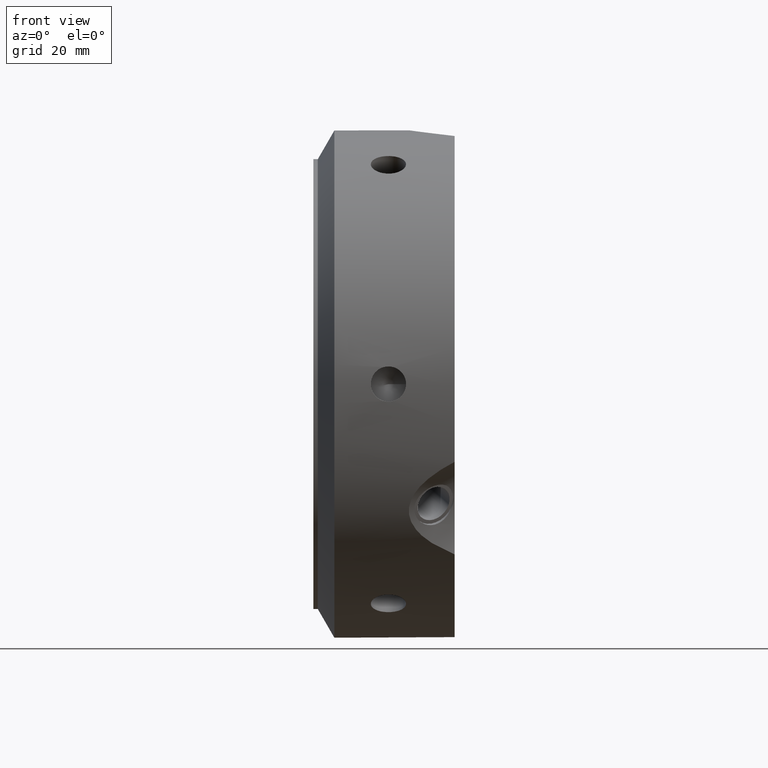
[diagram: clean part render]
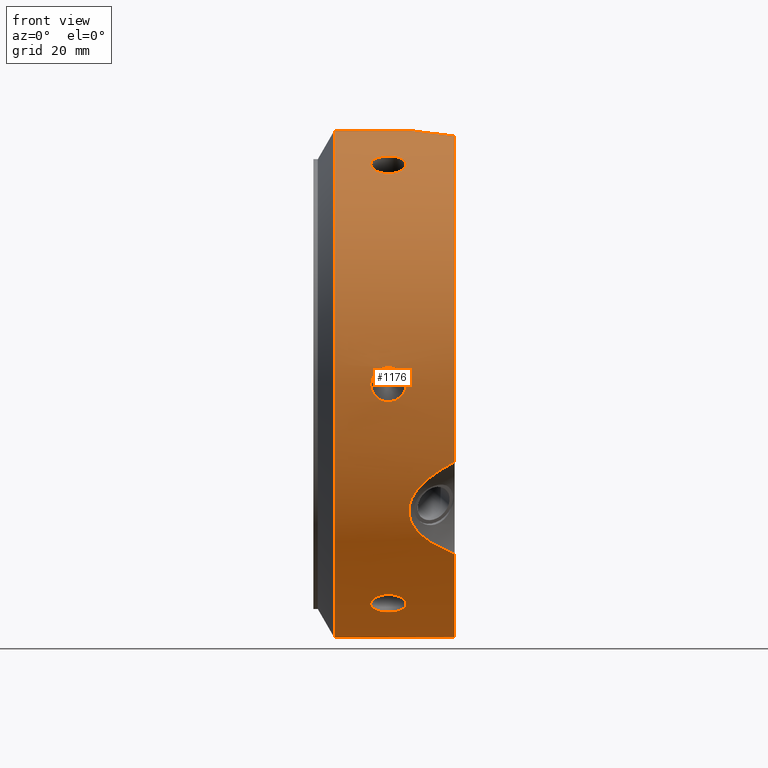
[diagram: same view with one face highlighted and labeled with its STEP entity id]
A machine part, front view. The second image highlights one B-rep face of the part: STEP entity #1176.
In plain terms, the highlighted cylindrical surface (bore or boss wall) has radius 57.5 mm, axis along (1, 0, 0).
Its self-contained STEP definition (entity closure, byte-faithful):
#90=CARTESIAN_POINT('',(12.999999999999975,28.75000000000005,49.7964607176052));
#91=VERTEX_POINT('',#90);
#92=CARTESIAN_POINT('',(20.999999999999979,28.750000000000053,49.7964607176052));
#93=VERTEX_POINT('',#92);
#94=CARTESIAN_POINT('',(12.999999999999975,28.75000000000005,49.796460717605193));
#95=CARTESIAN_POINT('',(12.999999999999975,29.185110928411781,49.545249305959331));
#96=CARTESIAN_POINT('',(13.100442524929877,29.645497984620533,49.271060563840649));
#97=CARTESIAN_POINT('',(13.508707771801728,30.48581583276988,48.755594477502655));
#98=CARTESIAN_POINT('',(13.816521521456016,30.86594565468782,48.514634555682164));
#99=CARTESIAN_POINT('',(14.526624510705979,31.46342671844463,48.129296136169337));
#100=CARTESIAN_POINT('',(14.976306428602872,31.720684961850907,47.959253418174043));
#101=CARTESIAN_POINT('',(15.961775664876292,32.061106468668989,47.732350612240538));
#102=CARTESIAN_POINT('',(16.497576778147295,32.144452031407127,47.675824099857635));
#103=CARTESIAN_POINT('',(17.502423221852659,32.144452031407127,47.675824099857635));
#104=CARTESIAN_POINT('',(18.038224335123672,32.061106468668989,47.732350612240552));
#105=CARTESIAN_POINT('',(19.023693571397089,31.720684961850903,47.95925341817405));
#106=CARTESIAN_POINT('',(19.473375489293975,31.463426718444623,48.129296136169337));
#107=CARTESIAN_POINT('',(20.183478478543936,30.865945654687813,48.514634555682164));
#108=CARTESIAN_POINT('',(20.491292228198233,30.485815832769877,48.755594477502655));
#109=CARTESIAN_POINT('',(20.899557475070083,29.645497984620526,49.271060563840649));
#110=CARTESIAN_POINT('',(20.999999999999975,29.185110928411781,49.545249305959331));
#111=CARTESIAN_POINT('',(20.999999999999975,28.75000000000005,49.796460717605193));
#112=B_SPLINE_CURVE_WITH_KNOTS('',3,(#94,#95,#96,#97,#98,#99,#100,#101,#102,#103,#104,#105,#106,#107,#108,#109,#110,#111),.UNSPECIFIED.,.F.,.U.,(4,2,2,2,2,2,2,2,4),(0.602907627086641,0.753634474074158,0.904361321061674,1.055088287617478,1.205815254173283,1.356542220729087,1.507269187284891,1.657996034272408,1.808722881259924),.UNSPECIFIED.);
#113=EDGE_CURVE('',#91,#93,#112,.T.);
#115=CARTESIAN_POINT('',(20.999999999999979,28.750000000000043,49.796460717605193));
#116=CARTESIAN_POINT('',(20.999999999999979,28.314889071588315,50.047672129251055));
#117=CARTESIAN_POINT('',(20.899557475070086,27.847241127377465,50.309284644442016));
#118=CARTESIAN_POINT('',(20.491292228198233,26.98067547774474,50.779288205023832));
#119=CARTESIAN_POINT('',(20.18347847854394,26.581933153195315,50.98801032663058));
#120=CARTESIAN_POINT('',(19.473375489293979,25.949479760964664,51.312774896367713));
#121=CARTESIAN_POINT('',(19.023693571397089,25.673589325749045,51.450545711492865));
#122=CARTESIAN_POINT('',(18.038224335123669,25.306874978211621,51.631907981425158));
#123=CARTESIAN_POINT('',(17.502423221852659,25.21624880113162,51.675824099857635));
#124=CARTESIAN_POINT('',(16.999999999999979,25.21624880113162,51.675824099857635));
#125=CARTESIAN_POINT('',(16.497576778147295,25.21624880113162,51.675824099857635));
#126=CARTESIAN_POINT('',(15.961775664876285,25.306874978211621,51.631907981425158));
#127=CARTESIAN_POINT('',(14.976306428602866,25.673589325749045,51.450545711492865));
#128=CARTESIAN_POINT('',(14.526624510705977,25.949479760964664,51.312774896367713));
#129=CARTESIAN_POINT('',(13.816521521456016,26.581933153195315,50.98801032663058));
#130=CARTESIAN_POINT('',(13.508707771801722,26.98067547774474,50.779288205023825));
#131=CARTESIAN_POINT('',(13.100442524929871,27.847241127377465,50.309284644442009));
#132=CARTESIAN_POINT('',(12.999999999999975,28.314889071588318,50.047672129251055));
#133=CARTESIAN_POINT('',(12.999999999999975,28.75000000000005,49.796460717605193));
#134=B_SPLINE_CURVE_WITH_KNOTS('',3,(#115,#116,#117,#118,#119,#120,#121,#122,#123,#124,#125,#126,#127,#128,#129,#130,#131,#132,#133),.UNSPECIFIED.,.F.,.U.,(4,2,2,2,3,2,2,2,4),(1.808722881259924,1.95944972824744,2.110176575234957,2.260903541790761,2.411630508346565,2.56235747490237,2.713084441458174,2.863811288445691,3.014538135433207),.UNSPECIFIED.);
#135=EDGE_CURVE('',#93,#91,#134,.T.);
#202=CARTESIAN_POINT('',(12.999999999999975,57.5,-3.830269E-014));
#203=VERTEX_POINT('',#202);
#204=CARTESIAN_POINT('',(20.999999999999979,57.5,-3.552714E-014));
#205=VERTEX_POINT('',#204);
#206=CARTESIAN_POINT('',(12.999999999999975,57.5,-3.233525E-014));
#207=CARTESIAN_POINT('',(12.999999999999975,57.5,-0.502422823291754));
#208=CARTESIAN_POINT('',(13.100442524929877,57.492739111997899,-1.038224080601411));
#209=CARTESIAN_POINT('',(13.508707771801724,57.46649131051452,-2.023693727521222));
#210=CARTESIAN_POINT('',(13.816521521456014,57.447878807883029,-2.473375770948451));
#211=CARTESIAN_POINT('',(14.526624510705977,57.412906479409187,-3.183478760198414));
#212=CARTESIAN_POINT('',(14.976306428602868,57.394274287599849,-3.491292293318862));
#213=CARTESIAN_POINT('',(15.96177566487629,57.367981446880506,-3.89955736918465));
#214=CARTESIAN_POINT('',(16.497576778147298,57.36070083253864,-4.000000000000034));
#215=CARTESIAN_POINT('',(17.502423221852656,57.36070083253864,-4.000000000000034));
#216=CARTESIAN_POINT('',(18.038224335123665,57.367981446880513,-3.89955736918465));
#217=CARTESIAN_POINT('',(19.023693571397086,57.394274287599856,-3.491292293318864));
#218=CARTESIAN_POINT('',(19.473375489293975,57.412906479409187,-3.183478760198414));
#219=CARTESIAN_POINT('',(20.183478478543936,57.447878807883029,-2.473375770948452));
#220=CARTESIAN_POINT('',(20.491292228198226,57.46649131051452,-2.023693727521224));
#221=CARTESIAN_POINT('',(20.899557475070083,57.492739111997899,-1.038224080601413));
#222=CARTESIAN_POINT('',(20.999999999999975,57.5,-0.502422823291757));
#223=CARTESIAN_POINT('',(20.999999999999975,57.5,-3.413936E-014));
#224=B_SPLINE_CURVE_WITH_KNOTS('',3,(#206,#207,#208,#209,#210,#211,#212,#213,#214,#215,#216,#217,#218,#219,#220,#221,#222,#223),.UNSPECIFIED.,.F.,.U.,(4,2,2,2,2,2,2,2,4),(0.602907627086641,0.753634474074158,0.904361321061674,1.055088287617479,1.205815254173283,1.356542220729087,1.507269187284891,1.657996034272408,1.808722881259925),.UNSPECIFIED.);
#225=EDGE_CURVE('',#203,#205,#224,.T.);
#227=CARTESIAN_POINT('',(20.999999999999975,57.5,-3.358425E-014));
#228=CARTESIAN_POINT('',(20.999999999999975,57.5,0.502422823291688));
#229=CARTESIAN_POINT('',(20.899557475070083,57.492739111997899,1.038224080601345));
#230=CARTESIAN_POINT('',(20.491292228198226,57.46649131051452,2.023693727521157));
#231=CARTESIAN_POINT('',(20.18347847854394,57.447878807883029,2.473375770948385));
#232=CARTESIAN_POINT('',(19.473375489293979,57.412906479409187,3.183478760198347));
#233=CARTESIAN_POINT('',(19.023693571397086,57.394274287599849,3.491292293318798));
#234=CARTESIAN_POINT('',(18.038224335123665,57.36798144688052,3.899557369184585));
#235=CARTESIAN_POINT('',(17.502423221852656,57.360700832538654,3.999999999999967));
#236=CARTESIAN_POINT('',(16.999999999999979,57.360700832538654,3.999999999999967));
#237=CARTESIAN_POINT('',(16.497576778147298,57.360700832538654,3.999999999999967));
#238=CARTESIAN_POINT('',(15.96177566487629,57.36798144688052,3.899557369184585));
#239=CARTESIAN_POINT('',(14.976306428602868,57.394274287599849,3.491292293318797));
#240=CARTESIAN_POINT('',(14.526624510705977,57.412906479409187,3.183478760198348));
#241=CARTESIAN_POINT('',(13.816521521456014,57.447878807883029,2.473375770948386));
#242=CARTESIAN_POINT('',(13.508707771801724,57.46649131051452,2.023693727521157));
#243=CARTESIAN_POINT('',(13.100442524929877,57.492739111997899,1.038224080601346));
#244=CARTESIAN_POINT('',(12.999999999999975,57.5,0.502422823291689));
#245=CARTESIAN_POINT('',(12.999999999999975,57.5,-3.247402E-014));
#246=B_SPLINE_CURVE_WITH_KNOTS('',3,(#227,#228,#229,#230,#231,#232,#233,#234,#235,#236,#237,#238,#239,#240,#241,#242,#243,#244,#245),.UNSPECIFIED.,.F.,.U.,(4,2,2,2,3,2,2,2,4),(1.808722881259925,1.959449728247441,2.110176575234958,2.260903541790762,2.411630508346566,2.56235747490237,2.713084441458174,2.863811288445691,3.014538135433207),.UNSPECIFIED.);
#247=EDGE_CURVE('',#205,#203,#246,.T.);
#314=CARTESIAN_POINT('',(12.999999999999975,28.749999999999986,-49.796460717605235));
#315=VERTEX_POINT('',#314);
#316=CARTESIAN_POINT('',(20.999999999999979,28.749999999999982,-49.796460717605235));
#317=VERTEX_POINT('',#316);
#318=CARTESIAN_POINT('',(12.999999999999975,28.749999999999993,-49.796460717605214));
#319=CARTESIAN_POINT('',(12.999999999999975,28.314889071588254,-50.047672129251083));
#320=CARTESIAN_POINT('',(13.100442524929871,27.847241127377401,-50.309284644442045));
#321=CARTESIAN_POINT('',(13.508707771801722,26.980675477744676,-50.77928820502386));
#322=CARTESIAN_POINT('',(13.816521521456014,26.581933153195251,-50.988010326630615));
#323=CARTESIAN_POINT('',(14.526624510705977,25.949479760964593,-51.312774896367742));
#324=CARTESIAN_POINT('',(14.976306428602868,25.673589325748974,-51.450545711492907));
#325=CARTESIAN_POINT('',(15.96177566487629,25.30687497821155,-51.631907981425201));
#326=CARTESIAN_POINT('',(16.497576778147298,25.216248801131556,-51.675824099857678));
#327=CARTESIAN_POINT('',(17.502423221852659,25.216248801131556,-51.675824099857678));
#328=CARTESIAN_POINT('',(18.03822433512368,25.306874978211553,-51.631907981425194));
#329=CARTESIAN_POINT('',(19.023693571397096,25.673589325748978,-51.450545711492893));
#330=CARTESIAN_POINT('',(19.473375489293979,25.9494797609646,-51.312774896367742));
#331=CARTESIAN_POINT('',(20.18347847854394,26.581933153195255,-50.988010326630615));
#332=CARTESIAN_POINT('',(20.491292228198226,26.980675477744672,-50.77928820502386));
#333=CARTESIAN_POINT('',(20.899557475070083,27.847241127377398,-50.309284644442045));
#334=CARTESIAN_POINT('',(20.999999999999979,28.314889071588262,-50.04767212925109));
#335=CARTESIAN_POINT('',(20.999999999999979,28.749999999999993,-49.796460717605228));
#336=B_SPLINE_CURVE_WITH_KNOTS('',3,(#318,#319,#320,#321,#322,#323,#324,#325,#326,#327,#328,#329,#330,#331,#332,#333,#334,#335),.UNSPECIFIED.,.F.,.U.,(4,2,2,2,2,2,2,2,4),(0.602907627086641,0.753634474074158,0.904361321061674,1.055088287617479,1.205815254173283,1.356542220729087,1.507269187284891,1.657996034272408,1.808722881259924),.UNSPECIFIED.);
#337=EDGE_CURVE('',#315,#317,#336,.T.);
#339=CARTESIAN_POINT('',(20.999999999999979,28.749999999999993,-49.796460717605228));
#340=CARTESIAN_POINT('',(20.999999999999979,29.185110928411721,-49.545249305959366));
#341=CARTESIAN_POINT('',(20.899557475070075,29.645497984620466,-49.271060563840685));
#342=CARTESIAN_POINT('',(20.491292228198226,30.485815832769816,-48.75559447750269));
#343=CARTESIAN_POINT('',(20.183478478543936,30.865945654687753,-48.514634555682207));
#344=CARTESIAN_POINT('',(19.473375489293975,31.463426718444563,-48.129296136169373));
#345=CARTESIAN_POINT('',(19.023693571397086,31.72068496185085,-47.959253418174079));
#346=CARTESIAN_POINT('',(18.038224335123665,32.061106468668939,-47.732350612240573));
#347=CARTESIAN_POINT('',(17.502423221852659,32.144452031407063,-47.675824099857671));
#348=CARTESIAN_POINT('',(16.999999999999979,32.144452031407063,-47.675824099857671));
#349=CARTESIAN_POINT('',(16.497576778147295,32.144452031407063,-47.675824099857671));
#350=CARTESIAN_POINT('',(15.961775664876285,32.061106468668939,-47.732350612240573));
#351=CARTESIAN_POINT('',(14.976306428602866,31.72068496185085,-47.959253418174079));
#352=CARTESIAN_POINT('',(14.526624510705977,31.463426718444563,-48.129296136169373));
#353=CARTESIAN_POINT('',(13.816521521456014,30.865945654687753,-48.514634555682207));
#354=CARTESIAN_POINT('',(13.508707771801724,30.485815832769816,-48.75559447750269));
#355=CARTESIAN_POINT('',(13.100442524929877,29.645497984620466,-49.271060563840685));
#356=CARTESIAN_POINT('',(12.999999999999975,29.185110928411717,-49.545249305959366));
#357=CARTESIAN_POINT('',(12.999999999999975,28.749999999999993,-49.796460717605228));
#358=B_SPLINE_CURVE_WITH_KNOTS('',3,(#339,#340,#341,#342,#343,#344,#345,#346,#347,#348,#349,#350,#351,#352,#353,#354,#355,#356,#357),.UNSPECIFIED.,.F.,.U.,(4,2,2,2,3,2,2,2,4),(1.808722881259924,1.95944972824744,2.110176575234957,2.260903541790761,2.411630508346565,2.562357474902369,2.713084441458173,2.86381128844569,3.014538135433206),.UNSPECIFIED.);
#359=EDGE_CURVE('',#317,#315,#358,.T.);
#426=CARTESIAN_POINT('',(12.999999999999975,-28.750000000000018,-49.796460717605207));
#427=VERTEX_POINT('',#426);
#428=CARTESIAN_POINT('',(20.999999999999979,-28.750000000000018,-49.796460717605207));
#429=VERTEX_POINT('',#428);
#430=CARTESIAN_POINT('',(12.999999999999979,-28.750000000000021,-49.796460717605207));
#431=CARTESIAN_POINT('',(12.999999999999979,-29.185110928411749,-49.545249305959345));
#432=CARTESIAN_POINT('',(13.100442524929877,-29.645497984620505,-49.271060563840663));
#433=CARTESIAN_POINT('',(13.508707771801724,-30.485815832769859,-48.755594477502669));
#434=CARTESIAN_POINT('',(13.816521521456014,-30.865945654687788,-48.514634555682186));
#435=CARTESIAN_POINT('',(14.526624510705979,-31.463426718444602,-48.129296136169359));
#436=CARTESIAN_POINT('',(14.976306428602872,-31.720684961850878,-47.959253418174058));
#437=CARTESIAN_POINT('',(15.961775664876292,-32.06110646866896,-47.732350612240559));
#438=CARTESIAN_POINT('',(16.497576778147295,-32.144452031407099,-47.675824099857664));
#439=CARTESIAN_POINT('',(17.502423221852659,-32.144452031407099,-47.675824099857664));
#440=CARTESIAN_POINT('',(18.038224335123672,-32.06110646866896,-47.732350612240566));
#441=CARTESIAN_POINT('',(19.023693571397093,-31.720684961850875,-47.959253418174072));
#442=CARTESIAN_POINT('',(19.473375489293979,-31.463426718444598,-48.129296136169359));
#443=CARTESIAN_POINT('',(20.18347847854394,-30.865945654687788,-48.514634555682186));
#444=CARTESIAN_POINT('',(20.491292228198226,-30.485815832769859,-48.755594477502669));
#445=CARTESIAN_POINT('',(20.899557475070083,-29.645497984620512,-49.271060563840663));
#446=CARTESIAN_POINT('',(20.999999999999979,-29.185110928411753,-49.545249305959345));
#447=CARTESIAN_POINT('',(20.999999999999979,-28.750000000000021,-49.796460717605207));
#448=B_SPLINE_CURVE_WITH_KNOTS('',3,(#430,#431,#432,#433,#434,#435,#436,#437,#438,#439,#440,#441,#442,#443,#444,#445,#446,#447),.UNSPECIFIED.,.F.,.U.,(4,2,2,2,2,2,2,2,4),(0.602907627086641,0.753634474074158,0.904361321061674,1.055088287617478,1.205815254173283,1.356542220729087,1.507269187284891,1.657996034272408,1.808722881259924),.UNSPECIFIED.);
#449=EDGE_CURVE('',#427,#429,#448,.T.);
#451=CARTESIAN_POINT('',(20.999999999999979,-28.750000000000018,-49.796460717605207));
#452=CARTESIAN_POINT('',(20.999999999999979,-28.314889071588286,-50.047672129251069));
#453=CARTESIAN_POINT('',(20.899557475070083,-27.847241127377437,-50.309284644442023));
#454=CARTESIAN_POINT('',(20.491292228198226,-26.980675477744711,-50.779288205023846));
#455=CARTESIAN_POINT('',(20.18347847854394,-26.58193315319529,-50.988010326630601));
#456=CARTESIAN_POINT('',(19.473375489293979,-25.949479760964635,-51.312774896367728));
#457=CARTESIAN_POINT('',(19.023693571397093,-25.673589325749013,-51.450545711492893));
#458=CARTESIAN_POINT('',(18.038224335123672,-25.306874978211589,-51.631907981425194));
#459=CARTESIAN_POINT('',(17.502423221852659,-25.216248801131592,-51.675824099857664));
#460=CARTESIAN_POINT('',(16.999999999999979,-25.216248801131592,-51.675824099857664));
#461=CARTESIAN_POINT('',(16.497576778147295,-25.216248801131592,-51.675824099857664));
#462=CARTESIAN_POINT('',(15.961775664876281,-25.306874978211589,-51.631907981425194));
#463=CARTESIAN_POINT('',(14.976306428602861,-25.673589325749013,-51.450545711492893));
#464=CARTESIAN_POINT('',(14.526624510705977,-25.949479760964635,-51.312774896367728));
#465=CARTESIAN_POINT('',(13.816521521456016,-26.58193315319529,-50.988010326630601));
#466=CARTESIAN_POINT('',(13.508707771801724,-26.980675477744711,-50.779288205023846));
#467=CARTESIAN_POINT('',(13.100442524929875,-27.847241127377437,-50.309284644442023));
#468=CARTESIAN_POINT('',(12.999999999999979,-28.31488907158829,-50.047672129251062));
#469=CARTESIAN_POINT('',(12.999999999999979,-28.750000000000028,-49.7964607176052));
#470=B_SPLINE_CURVE_WITH_KNOTS('',3,(#451,#452,#453,#454,#455,#456,#457,#458,#459,#460,#461,#462,#463,#464,#465,#466,#467,#468,#469),.UNSPECIFIED.,.F.,.U.,(4,2,2,2,3,2,2,2,4),(1.808722881259924,1.95944972824744,2.110176575234957,2.260903541790761,2.411630508346565,2.56235747490237,2.713084441458174,2.863811288445691,3.014538135433207),.UNSPECIFIED.);
#471=EDGE_CURVE('',#429,#427,#470,.T.);
#538=CARTESIAN_POINT('',(12.999999999999975,-57.5,1.595946E-014));
#539=VERTEX_POINT('',#538);
#540=CARTESIAN_POINT('',(20.999999999999979,-57.5,1.776357E-014));
#541=VERTEX_POINT('',#540);
#542=CARTESIAN_POINT('',(12.999999999999975,-57.5,1.360023E-014));
#543=CARTESIAN_POINT('',(12.999999999999975,-57.5,0.502422823291735));
#544=CARTESIAN_POINT('',(13.100442524929875,-57.492739111997899,1.038224080601393));
#545=CARTESIAN_POINT('',(13.508707771801724,-57.46649131051452,2.023693727521204));
#546=CARTESIAN_POINT('',(13.816521521456016,-57.447878807883029,2.473375770948432));
#547=CARTESIAN_POINT('',(14.526624510705977,-57.412906479409187,3.183478760198395));
#548=CARTESIAN_POINT('',(14.976306428602868,-57.394274287599849,3.491292293318843));
#549=CARTESIAN_POINT('',(15.96177566487629,-57.367981446880506,3.899557369184631));
#550=CARTESIAN_POINT('',(16.497576778147298,-57.360700832538647,4.000000000000014));
#551=CARTESIAN_POINT('',(17.502423221852656,-57.360700832538647,4.000000000000014));
#552=CARTESIAN_POINT('',(18.038224335123665,-57.367981446880506,3.899557369184631));
#553=CARTESIAN_POINT('',(19.023693571397086,-57.394274287599849,3.491292293318844));
#554=CARTESIAN_POINT('',(19.473375489293975,-57.412906479409187,3.183478760198395));
#555=CARTESIAN_POINT('',(20.183478478543936,-57.447878807883029,2.473375770948433));
#556=CARTESIAN_POINT('',(20.491292228198226,-57.46649131051452,2.023693727521205));
#557=CARTESIAN_POINT('',(20.899557475070083,-57.492739111997899,1.038224080601395));
#558=CARTESIAN_POINT('',(20.999999999999975,-57.5,0.502422823291737));
#559=CARTESIAN_POINT('',(20.999999999999975,-57.5,1.526557E-014));
#560=B_SPLINE_CURVE_WITH_KNOTS('',3,(#542,#543,#544,#545,#546,#547,#548,#549,#550,#551,#552,#553,#554,#555,#556,#557,#558,#559),.UNSPECIFIED.,.F.,.U.,(4,2,2,2,2,2,2,2,4),(0.602907627086642,0.753634474074158,0.904361321061675,1.055088287617479,1.205815254173283,1.356542220729087,1.507269187284892,1.657996034272408,1.808722881259925),.UNSPECIFIED.);
#561=EDGE_CURVE('',#539,#541,#560,.T.);
#563=CARTESIAN_POINT('',(20.999999999999975,-57.5,1.498801E-014));
#564=CARTESIAN_POINT('',(20.999999999999975,-57.5,-0.502422823291707));
#565=CARTESIAN_POINT('',(20.899557475070083,-57.492739111997899,-1.038224080601363));
#566=CARTESIAN_POINT('',(20.491292228198226,-57.46649131051452,-2.023693727521176));
#567=CARTESIAN_POINT('',(20.18347847854394,-57.447878807883029,-2.473375770948403));
#568=CARTESIAN_POINT('',(19.473375489293979,-57.412906479409187,-3.183478760198366));
#569=CARTESIAN_POINT('',(19.023693571397089,-57.39427428759987,-3.491292293318813));
#570=CARTESIAN_POINT('',(18.038224335123669,-57.36798144688052,-3.899557369184603));
#571=CARTESIAN_POINT('',(17.502423221852659,-57.360700832538647,-3.999999999999986));
#572=CARTESIAN_POINT('',(16.999999999999979,-57.360700832538647,-3.999999999999986));
#573=CARTESIAN_POINT('',(16.497576778147298,-57.360700832538647,-3.999999999999986));
#574=CARTESIAN_POINT('',(15.96177566487629,-57.367981446880528,-3.899557369184604));
#575=CARTESIAN_POINT('',(14.976306428602868,-57.39427428759987,-3.491292293318816));
#576=CARTESIAN_POINT('',(14.526624510705977,-57.412906479409187,-3.183478760198367));
#577=CARTESIAN_POINT('',(13.816521521456014,-57.447878807883029,-2.473375770948404));
#578=CARTESIAN_POINT('',(13.508707771801724,-57.46649131051452,-2.023693727521176));
#579=CARTESIAN_POINT('',(13.100442524929877,-57.492739111997899,-1.038224080601365));
#580=CARTESIAN_POINT('',(12.999999999999975,-57.5,-0.502422823291708));
#581=CARTESIAN_POINT('',(12.999999999999975,-57.5,1.360023E-014));
#582=B_SPLINE_CURVE_WITH_KNOTS('',3,(#563,#564,#565,#566,#567,#568,#569,#570,#571,#572,#573,#574,#575,#576,#577,#578,#579,#580,#581),.UNSPECIFIED.,.F.,.U.,(4,2,2,2,3,2,2,2,4),(1.808722881259925,1.959449728247441,2.110176575234958,2.260903541790762,2.411630508346566,2.562357474902371,2.713084441458175,2.863811288445691,3.014538135433208),.UNSPECIFIED.);
#583=EDGE_CURVE('',#541,#539,#582,.T.);
#687=CARTESIAN_POINT('',(12.999999999999975,-28.749999999999993,49.796460717605228));
#688=VERTEX_POINT('',#687);
#689=CARTESIAN_POINT('',(20.999999999999979,-28.749999999999993,49.796460717605228));
#690=VERTEX_POINT('',#689);
#691=CARTESIAN_POINT('',(12.999999999999979,-28.749999999999996,49.796460717605214));
#692=CARTESIAN_POINT('',(12.999999999999979,-28.314889071588265,50.047672129251083));
#693=CARTESIAN_POINT('',(13.100442524929875,-27.847241127377401,50.309284644442045));
#694=CARTESIAN_POINT('',(13.508707771801724,-26.980675477744676,50.77928820502386));
#695=CARTESIAN_POINT('',(13.816521521456014,-26.581933153195259,50.988010326630615));
#696=CARTESIAN_POINT('',(14.526624510705977,-25.9494797609646,51.312774896367742));
#697=CARTESIAN_POINT('',(14.97630642860287,-25.673589325748985,51.450545711492893));
#698=CARTESIAN_POINT('',(15.961775664876292,-25.30687497821156,51.631907981425194));
#699=CARTESIAN_POINT('',(16.497576778147298,-25.216248801131567,51.675824099857678));
#700=CARTESIAN_POINT('',(17.502423221852659,-25.216248801131567,51.675824099857678));
#701=CARTESIAN_POINT('',(18.038224335123672,-25.306874978211557,51.631907981425201));
#702=CARTESIAN_POINT('',(19.023693571397089,-25.673589325748981,51.450545711492907));
#703=CARTESIAN_POINT('',(19.473375489293979,-25.949479760964607,51.312774896367756));
#704=CARTESIAN_POINT('',(20.18347847854394,-26.581933153195262,50.988010326630615));
#705=CARTESIAN_POINT('',(20.491292228198226,-26.980675477744676,50.77928820502386));
#706=CARTESIAN_POINT('',(20.899557475070083,-27.847241127377398,50.309284644442052));
#707=CARTESIAN_POINT('',(20.999999999999979,-28.314889071588265,50.04767212925109));
#708=CARTESIAN_POINT('',(20.999999999999979,-28.749999999999996,49.796460717605228));
#709=B_SPLINE_CURVE_WITH_KNOTS('',3,(#691,#692,#693,#694,#695,#696,#697,#698,#699,#700,#701,#702,#703,#704,#705,#706,#707,#708),.UNSPECIFIED.,.F.,.U.,(4,2,2,2,2,2,2,2,4),(0.602907627086641,0.753634474074158,0.904361321061675,1.055088287617479,1.205815254173283,1.356542220729087,1.507269187284892,1.657996034272408,1.808722881259924),.UNSPECIFIED.);
#710=EDGE_CURVE('',#688,#690,#709,.T.);
#712=CARTESIAN_POINT('',(20.999999999999979,-28.749999999999996,49.796460717605228));
#713=CARTESIAN_POINT('',(20.999999999999979,-29.185110928411731,49.545249305959366));
#714=CARTESIAN_POINT('',(20.899557475070083,-29.645497984620469,49.271060563840678));
#715=CARTESIAN_POINT('',(20.491292228198237,-30.485815832769823,48.755594477502683));
#716=CARTESIAN_POINT('',(20.18347847854394,-30.86594565468776,48.514634555682207));
#717=CARTESIAN_POINT('',(19.473375489293979,-31.463426718444573,48.129296136169373));
#718=CARTESIAN_POINT('',(19.023693571397089,-31.720684961850857,47.959253418174079));
#719=CARTESIAN_POINT('',(18.038224335123669,-32.061106468668946,47.732350612240573));
#720=CARTESIAN_POINT('',(17.502423221852659,-32.14445203140707,47.675824099857671));
#721=CARTESIAN_POINT('',(16.999999999999979,-32.14445203140707,47.675824099857671));
#722=CARTESIAN_POINT('',(16.497576778147295,-32.14445203140707,47.675824099857671));
#723=CARTESIAN_POINT('',(15.961775664876285,-32.061106468668946,47.732350612240573));
#724=CARTESIAN_POINT('',(14.976306428602866,-31.720684961850857,47.959253418174079));
#725=CARTESIAN_POINT('',(14.526624510705977,-31.463426718444573,48.129296136169373));
#726=CARTESIAN_POINT('',(13.816521521456016,-30.86594565468776,48.514634555682207));
#727=CARTESIAN_POINT('',(13.508707771801724,-30.485815832769827,48.75559447750269));
#728=CARTESIAN_POINT('',(13.100442524929877,-29.645497984620476,49.271060563840685));
#729=CARTESIAN_POINT('',(12.999999999999979,-29.185110928411721,49.545249305959366));
#730=CARTESIAN_POINT('',(12.999999999999979,-28.749999999999993,49.796460717605228));
#731=B_SPLINE_CURVE_WITH_KNOTS('',3,(#712,#713,#714,#715,#716,#717,#718,#719,#720,#721,#722,#723,#724,#725,#726,#727,#728,#729,#730),.UNSPECIFIED.,.F.,.U.,(4,2,2,2,3,2,2,2,4),(1.808722881259924,1.959449728247441,2.110176575234957,2.260903541790762,2.411630508346566,2.56235747490237,2.713084441458175,2.863811288445691,3.014538135433207),.UNSPECIFIED.);
#732=EDGE_CURVE('',#690,#688,#731,.T.);
#873=CARTESIAN_POINT('',(31.999999999999989,42.62734175311104,-38.589632481580807));
#874=VERTEX_POINT('',#873);
#875=CARTESIAN_POINT('',(31.999999999999989,54.733272928309603,-17.621544613204904));
#876=VERTEX_POINT('',#875);
#884=CARTESIAN_POINT('',(31.999999999999975,54.733272928309617,-17.62154461320489));
#885=CARTESIAN_POINT('',(30.635309194661403,54.507378444871364,-18.323182561887336));
#886=CARTESIAN_POINT('',(29.332335712393274,54.250226001833887,-19.076813119152956));
#887=CARTESIAN_POINT('',(26.496854179814822,53.545981411950194,-20.986406614058588));
#888=CARTESIAN_POINT('',(24.849028117804277,53.015386066421343,-22.324107939405046));
#889=CARTESIAN_POINT('',(23.012796946384888,51.984954099255788,-24.586608189016069));
#890=CARTESIAN_POINT('',(22.50566165090525,51.602118230991117,-25.383667020615359));
#891=CARTESIAN_POINT('',(21.802930671848031,50.757143318077887,-27.033711539641565));
#892=CARTESIAN_POINT('',(21.607695154586779,50.294846814146233,-27.88676995900504));
#893=CARTESIAN_POINT('',(21.607695154586779,49.298074621064167,-29.613230040995031));
#894=CARTESIAN_POINT('',(21.802930671848053,48.790452610949032,-30.440119767162301));
#895=CARTESIAN_POINT('',(22.50566165090526,47.783959596553686,-31.996911766818798));
#896=CARTESIAN_POINT('',(23.01279694638491,47.285104334210288,-32.726986770015536));
#897=CARTESIAN_POINT('',(24.849028117804309,45.840937625561281,-34.750617155257984));
#898=CARTESIAN_POINT('',(26.496854179814846,44.947751967899535,-35.878976866288987));
#899=CARTESIAN_POINT('',(29.332335712393295,43.646117785351606,-37.443667319058825));
#900=CARTESIAN_POINT('',(30.635309194661424,43.122030799210094,-38.043183146007308));
#901=CARTESIAN_POINT('',(31.999999999999979,42.627341753111025,-38.589632481580821));
#902=B_SPLINE_CURVE_WITH_KNOTS('',3,(#884,#885,#886,#887,#888,#889,#890,#891,#892,#893,#894,#895,#896,#897,#898,#899,#900,#901),.UNSPECIFIED.,.F.,.U.,(4,2,2,2,2,2,2,2,4),(2.363867955755565,2.812906208608418,3.410969524457657,3.710001182382277,4.009032840306896,4.308064498231516,4.607096156156135,5.205159472005375,5.654197724858224),.UNSPECIFIED.);
#903=EDGE_CURVE('',#876,#874,#902,.T.);
#1044=CARTESIAN_POINT('',(31.999999999999989,-54.733272928309624,-17.621544613204851));
#1045=VERTEX_POINT('',#1044);
#1046=CARTESIAN_POINT('',(31.999999999999986,-42.62734175311104,-38.589632481580793));
#1047=VERTEX_POINT('',#1046);
#1055=CARTESIAN_POINT('',(31.999999999999993,-42.627341753111054,-38.589632481580786));
#1056=CARTESIAN_POINT('',(30.572520604132759,-43.144791140111536,-38.018041345797464));
#1057=CARTESIAN_POINT('',(29.212513546490779,-43.694347967771975,-37.388509207233199));
#1058=CARTESIAN_POINT('',(26.367240512617339,-45.016812094739045,-35.791981972231056));
#1059=CARTESIAN_POINT('',(24.759330753933,-45.899389837708505,-34.672470712049105));
#1060=CARTESIAN_POINT('',(22.971296441401741,-47.324236174453034,-32.67013532505193));
#1061=CARTESIAN_POINT('',(22.47823884609015,-47.816136775924335,-31.948437397307615));
#1062=CARTESIAN_POINT('',(21.796225819738151,-48.807516508123342,-30.412364602379153));
#1063=CARTESIAN_POINT('',(21.607695154586747,-49.306986052666971,-29.597794988690822));
#1064=CARTESIAN_POINT('',(21.607695154586747,-50.285935382543499,-27.90220501130916));
#1065=CARTESIAN_POINT('',(21.796225819738162,-50.741638588876683,-27.062366890473552));
#1066=CARTESIAN_POINT('',(22.478238846090157,-51.576226785247393,-25.435770460127976));
#1067=CARTESIAN_POINT('',(22.971296441401755,-51.955285223796885,-24.648923079244824));
#1068=CARTESIAN_POINT('',(24.759330753933014,-52.976935367460726,-22.413802261636281));
#1069=CARTESIAN_POINT('',(26.367240512617343,-53.505171687116274,-21.089711885319026));
#1070=CARTESIAN_POINT('',(29.212513546490783,-54.226572766978329,-19.146160738270861));
#1071=CARTESIAN_POINT('',(30.572520604132748,-54.496985177643509,-18.355464495411617));
#1072=CARTESIAN_POINT('',(31.999999999999979,-54.733272928309624,-17.621544613204847));
#1073=B_SPLINE_CURVE_WITH_KNOTS('',3,(#1055,#1056,#1057,#1058,#1059,#1060,#1061,#1062,#1063,#1064,#1065,#1066,#1067,#1068,#1069,#1070,#1071,#1072),.UNSPECIFIED.,.F.,.U.,(4,2,2,2,2,2,2,2,4),(2.293710124507384,2.762467900284805,3.349837498210725,3.643522297173685,3.937207096136644,4.230891895099605,4.524576694062565,5.111946291988485,5.580704067765905),.UNSPECIFIED.);
#1074=EDGE_CURVE('',#1047,#1045,#1073,.T.);
#1082=CARTESIAN_POINT('',(18.376388374866266,0.0,0.0));
#1083=DIRECTION('',(1.0,0.0,0.0));
#1084=DIRECTION('',(0.0,1.0,0.0));
#1085=AXIS2_PLACEMENT_3D('',#1082,#1083,#1084);
#1086=CYLINDRICAL_SURFACE('',#1085,57.5);
#1087=CARTESIAN_POINT('',(4.752776749732543,57.5,0.0));
#1088=VERTEX_POINT('',#1087);
#1089=CARTESIAN_POINT('',(4.752776749732543,0.0,0.0));
#1090=DIRECTION('',(1.0,0.0,0.0));
#1091=DIRECTION('',(0.0,1.0,0.0));
#1092=AXIS2_PLACEMENT_3D('',#1089,#1090,#1091);
#1093=CIRCLE('',#1092,57.5);
#1094=EDGE_CURVE('',#1088,#1088,#1093,.T.);
#1095=ORIENTED_EDGE('',*,*,#1094,.T.);
#1096=EDGE_LOOP('',(#1095));
#1097=FACE_OUTER_BOUND('',#1096,.T.);
#1098=ORIENTED_EDGE('',*,*,#113,.T.);
#1099=ORIENTED_EDGE('',*,*,#135,.T.);
#1100=EDGE_LOOP('',(#1098,#1099));
#1101=FACE_BOUND('',#1100,.T.);
#1102=ORIENTED_EDGE('',*,*,#225,.T.);
#1103=ORIENTED_EDGE('',*,*,#247,.T.);
#1104=EDGE_LOOP('',(#1102,#1103));
#1105=FACE_BOUND('',#1104,.T.);
#1106=ORIENTED_EDGE('',*,*,#337,.T.);
#1107=ORIENTED_EDGE('',*,*,#359,.T.);
#1108=EDGE_LOOP('',(#1106,#1107));
#1109=FACE_BOUND('',#1108,.T.);
#1110=ORIENTED_EDGE('',*,*,#449,.T.);
#1111=ORIENTED_EDGE('',*,*,#471,.T.);
#1112=EDGE_LOOP('',(#1110,#1111));
#1113=FACE_BOUND('',#1112,.T.);
#1114=ORIENTED_EDGE('',*,*,#561,.T.);
#1115=ORIENTED_EDGE('',*,*,#583,.T.);
#1116=EDGE_LOOP('',(#1114,#1115));
#1117=FACE_BOUND('',#1116,.T.);
#1118=ORIENTED_EDGE('',*,*,#710,.T.);
#1119=ORIENTED_EDGE('',*,*,#732,.T.);
#1120=EDGE_LOOP('',(#1118,#1119));
#1121=FACE_BOUND('',#1120,.T.);
#1122=ORIENTED_EDGE('',*,*,#903,.T.);
#1123=CARTESIAN_POINT('',(31.999999999999989,0.0,0.0));
#1124=DIRECTION('',(1.0,0.0,0.0));
#1125=DIRECTION('',(0.0,1.0,0.0));
#1126=AXIS2_PLACEMENT_3D('',#1123,#1124,#1125);
#1127=CIRCLE('',#1126,57.5);
#1128=EDGE_CURVE('',#1047,#874,#1127,.T.);
#1129=ORIENTED_EDGE('',*,*,#1128,.F.);
#1130=ORIENTED_EDGE('',*,*,#1074,.T.);
#1131=CARTESIAN_POINT('',(31.999999999999989,-12.105931175198581,56.211177094785654));
#1132=VERTEX_POINT('',#1131);
#1133=CARTESIAN_POINT('',(31.999999999999989,0.0,0.0));
#1134=DIRECTION('',(1.0,0.0,0.0));
#1135=DIRECTION('',(0.0,1.0,0.0));
#1136=AXIS2_PLACEMENT_3D('',#1133,#1134,#1135);
#1137=CIRCLE('',#1136,57.5);
#1138=EDGE_CURVE('',#1132,#1045,#1137,.T.);
#1139=ORIENTED_EDGE('',*,*,#1138,.F.);
#1140=CARTESIAN_POINT('',(31.999999999999989,12.105931175198581,56.211177094785654));
#1141=VERTEX_POINT('',#1140);
#1142=CARTESIAN_POINT('',(31.999999999999986,-12.105931175198577,56.211177094785647));
#1143=CARTESIAN_POINT('',(31.410991894250884,-11.794923335102897,56.278157359240822));
#1144=CARTESIAN_POINT('',(30.832805887313576,-11.471994389955803,56.345011427245133));
#1145=CARTESIAN_POINT('',(28.714576543147604,-10.213134761511508,56.593530033995052));
#1146=CARTESIAN_POINT('',(27.262507608577991,-9.196919681049078,56.771399531185594));
#1147=CARTESIAN_POINT('',(24.844030252061067,-7.047979461535707,57.075518123924063));
#1148=CARTESIAN_POINT('',(23.715385701442848,-5.817923470899609,57.221614966019359));
#1149=CARTESIAN_POINT('',(22.496630100666827,-3.750266867999268,57.381733905225346));
#1150=CARTESIAN_POINT('',(22.168130810336319,-3.023320710405891,57.425326134605811));
#1151=CARTESIAN_POINT('',(21.723391247196577,-1.529768858745498,57.484505365467697));
#1152=CARTESIAN_POINT('',(21.607695154586757,-0.762997518173969,57.5));
#1153=CARTESIAN_POINT('',(21.607695154586757,0.762997518173969,57.5));
#1154=CARTESIAN_POINT('',(21.723391247196581,1.529768858745498,57.484505365467697));
#1155=CARTESIAN_POINT('',(22.168130810336319,3.02332071040589,57.425326134605811));
#1156=CARTESIAN_POINT('',(22.496630100666827,3.750266867999267,57.381733905225346));
#1157=CARTESIAN_POINT('',(23.715385701442848,5.817923470899609,57.221614966019359));
#1158=CARTESIAN_POINT('',(24.844030252061067,7.047979461535707,57.075518123924063));
#1159=CARTESIAN_POINT('',(27.262507608577991,9.19691968104908,56.771399531185594));
#1160=CARTESIAN_POINT('',(28.714576543147604,10.213134761511512,56.593530033995052));
#1161=CARTESIAN_POINT('',(30.832805887313583,11.471994389955803,56.345011427245133));
#1162=CARTESIAN_POINT('',(31.410991894250881,11.794923335102897,56.278157359240822));
#1163=CARTESIAN_POINT('',(31.999999999999986,12.105931175198579,56.211177094785647));
#1164=B_SPLINE_CURVE_WITH_KNOTS('',3,(#1142,#1143,#1144,#1145,#1146,#1147,#1148,#1149,#1150,#1151,#1152,#1153,#1154,#1155,#1156,#1157,#1158,#1159,#1160,#1161,#1162,#1163),.UNSPECIFIED.,.F.,.U.,(4,2,2,2,2,2,2,2,2,2,4),(1.363288143857819,1.551184193790468,2.068245591720624,2.526044102625005,2.754943358077196,2.983842613529387,3.212741868981577,3.441641124433768,3.899439635338149,4.416501033268306,4.604397083200956),.UNSPECIFIED.);
#1165=EDGE_CURVE('',#1132,#1141,#1164,.T.);
#1166=ORIENTED_EDGE('',*,*,#1165,.T.);
#1167=CARTESIAN_POINT('',(31.999999999999989,0.0,0.0));
#1168=DIRECTION('',(1.0,0.0,0.0));
#1169=DIRECTION('',(0.0,1.0,0.0));
#1170=AXIS2_PLACEMENT_3D('',#1167,#1168,#1169);
#1171=CIRCLE('',#1170,57.5);
#1172=EDGE_CURVE('',#876,#1141,#1171,.T.);
#1173=ORIENTED_EDGE('',*,*,#1172,.F.);
#1174=EDGE_LOOP('',(#1122,#1129,#1130,#1139,#1166,#1173));
#1175=FACE_BOUND('',#1174,.T.);
#1176=ADVANCED_FACE('',(#1097,#1101,#1105,#1109,#1113,#1117,#1121,#1175),#1086,.T.);